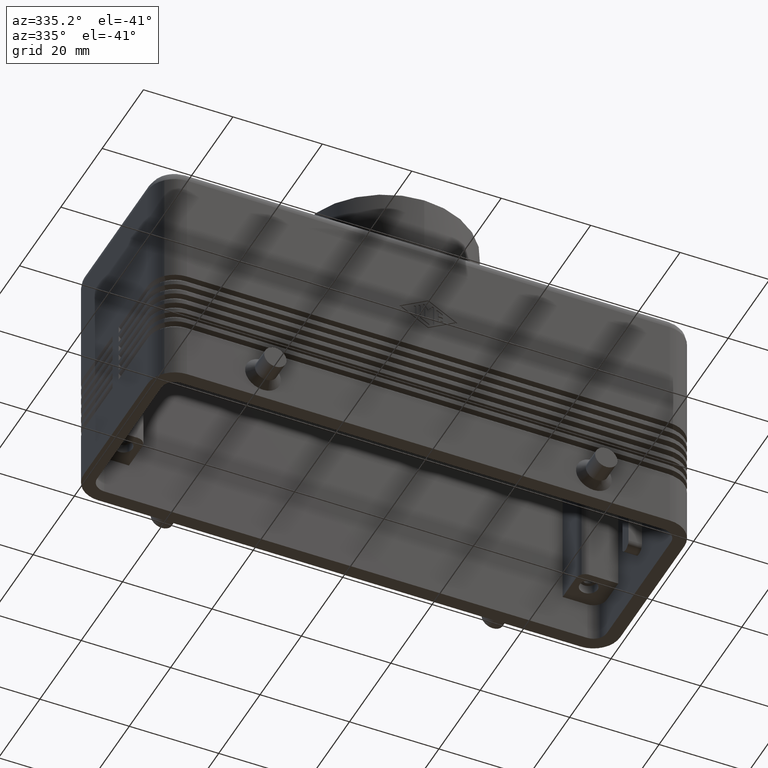
[diagram: clean part render]
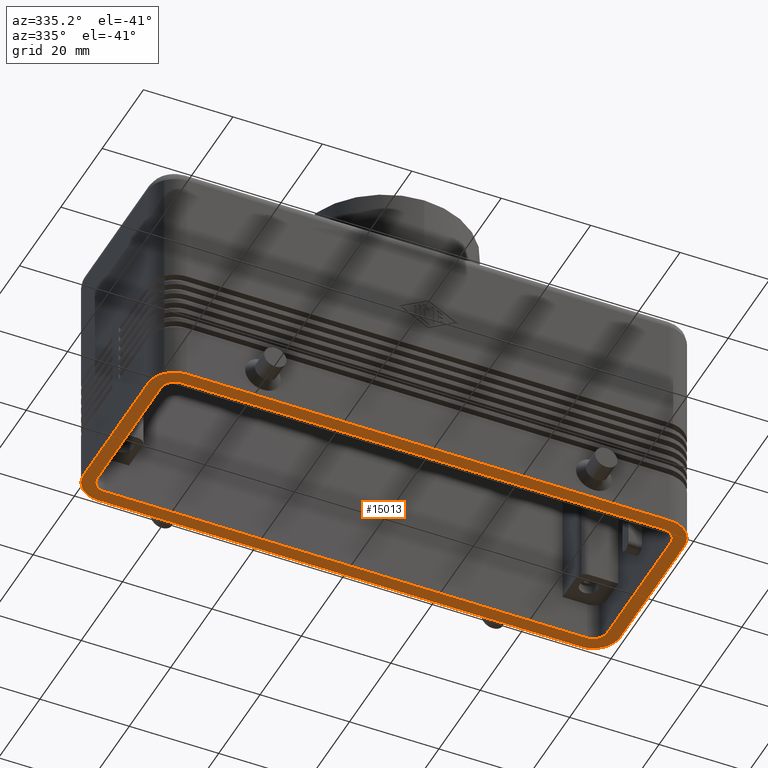
[diagram: same view with one face highlighted and labeled with its STEP entity id]
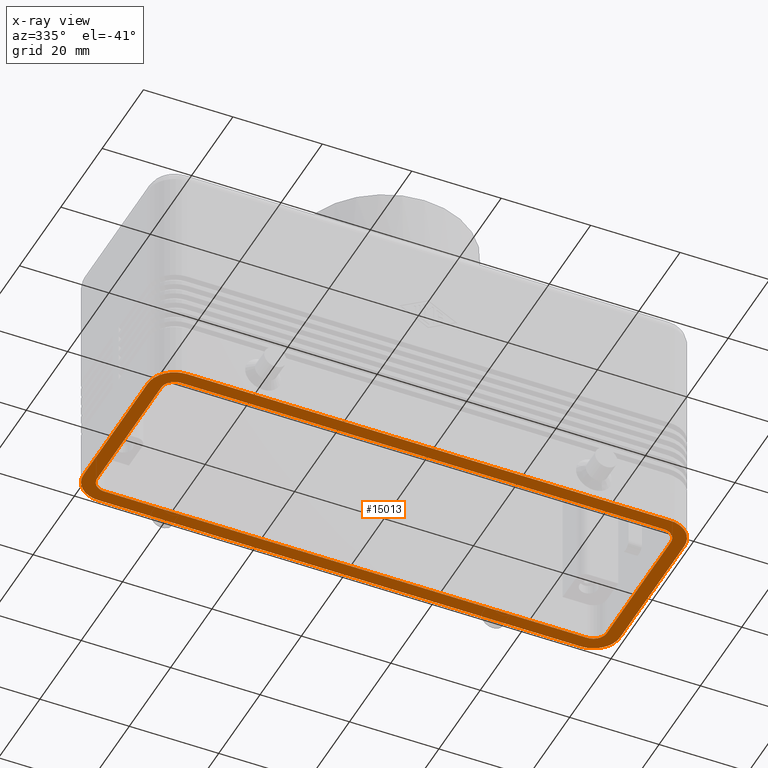
[diagram: x-ray of the same camera — body ghosted, the highlighted face saturated]
A machine part, auxiliary view. The second image highlights one B-rep face of the part: STEP entity #15013.
The next image is the same camera in x-ray: the body ghosted, the highlighted face saturated — about 0% of this face is hidden behind the body in this view.
In plain terms, the highlighted planar face has unit normal (0, 0, -1).
Its self-contained STEP definition (entity closure, byte-faithful):
#306=CARTESIAN_POINT('',(-58.242640687119284,-19.742640687119277,0.0));
#307=VERTEX_POINT('',#306);
#316=CARTESIAN_POINT('',(-53.999999999999986,-21.500000000000000,0.0));
#317=VERTEX_POINT('',#316);
#318=CARTESIAN_POINT('',(-53.999999999999993,-15.499999999999998,0.0));
#319=DIRECTION('',(0.0,0.0,1.000000000000000));
#320=DIRECTION('',(-0.707106781186548,-0.707106781186547,0.0));
#321=AXIS2_PLACEMENT_3D('',#318,#319,#320);
#322=CIRCLE('',#321,6.000000000000001);
#323=EDGE_CURVE('',#307,#317,#322,.T.);
#350=CARTESIAN_POINT('',(58.242640687119284,-19.742640687119284,1.776357E-014));
#351=VERTEX_POINT('',#350);
#367=CARTESIAN_POINT('',(54.0,-21.500000000000000,0.0));
#368=VERTEX_POINT('',#367);
#375=CARTESIAN_POINT('',(54.0,-15.499999999999998,1.776357E-014));
#376=DIRECTION('',(0.0,0.0,1.0));
#377=DIRECTION('',(0.707106781186547,-0.707106781186548,0.0));
#378=AXIS2_PLACEMENT_3D('',#375,#376,#377);
#379=CIRCLE('',#378,6.0);
#380=EDGE_CURVE('',#368,#351,#379,.T.);
#1718=CARTESIAN_POINT('',(58.242640687119284,19.742640687119284,1.776357E-014));
#1719=VERTEX_POINT('',#1718);
#1728=CARTESIAN_POINT('',(54.0,21.500000000000000,0.0));
#1729=VERTEX_POINT('',#1728);
#1730=CARTESIAN_POINT('',(54.0,15.499999999999998,1.776357E-014));
#1731=DIRECTION('',(0.0,0.0,1.0));
#1732=DIRECTION('',(0.707106781186547,0.707106781186548,0.0));
#1733=AXIS2_PLACEMENT_3D('',#1730,#1731,#1732);
#1734=CIRCLE('',#1733,6.0);
#1735=EDGE_CURVE('',#1719,#1729,#1734,.T.);
#1762=CARTESIAN_POINT('',(-58.242640687119284,19.742640687119277,0.0));
#1763=VERTEX_POINT('',#1762);
#1779=CARTESIAN_POINT('',(-53.999999999999986,21.500000000000000,0.0));
#1780=VERTEX_POINT('',#1779);
#1787=CARTESIAN_POINT('',(-53.999999999999993,15.499999999999998,0.0));
#1788=DIRECTION('',(0.0,0.0,1.000000000000000));
#1789=DIRECTION('',(-0.707106781186548,0.707106781186547,0.0));
#1790=AXIS2_PLACEMENT_3D('',#1787,#1788,#1789);
#1791=CIRCLE('',#1790,6.000000000000001);
#1792=EDGE_CURVE('',#1780,#1763,#1791,.T.);
#4977=CARTESIAN_POINT('',(57.0,15.499999999999998,0.0));
#4978=VERTEX_POINT('',#4977);
#4985=CARTESIAN_POINT('',(57.0,-15.499999999999998,0.0));
#4986=VERTEX_POINT('',#4985);
#4987=CARTESIAN_POINT('',(57.0,-15.499999999999998,0.0));
#4988=DIRECTION('',(0.0,1.0,0.0));
#4989=VECTOR('',#4988,30.999999999999996);
#4990=LINE('',#4987,#4989);
#4991=EDGE_CURVE('',#4986,#4978,#4990,.T.);
#6459=CARTESIAN_POINT('',(60.0,-15.499999999999998,0.0));
#6460=VERTEX_POINT('',#6459);
#6467=CARTESIAN_POINT('',(60.0,15.499999999999998,0.0));
#6468=VERTEX_POINT('',#6467);
#6469=CARTESIAN_POINT('',(60.0,15.499999999999998,0.0));
#6470=DIRECTION('',(0.0,-1.0,0.0));
#6471=VECTOR('',#6470,30.999999999999996);
#6472=LINE('',#6469,#6471);
#6473=EDGE_CURVE('',#6468,#6460,#6472,.T.);
#7641=CARTESIAN_POINT('',(54.0,18.500000000000000,0.0));
#7642=VERTEX_POINT('',#7641);
#7649=CARTESIAN_POINT('',(54.0,15.499999999999998,0.0));
#7650=DIRECTION('',(0.0,0.0,1.0));
#7651=DIRECTION('',(1.0,0.0,0.0));
#7652=AXIS2_PLACEMENT_3D('',#7649,#7650,#7651);
#7653=CIRCLE('',#7652,3.000000000000000);
#7654=EDGE_CURVE('',#4978,#7642,#7653,.T.);
#7667=CARTESIAN_POINT('',(54.0,-18.500000000000000,0.0));
#7668=VERTEX_POINT('',#7667);
#7669=CARTESIAN_POINT('',(54.0,-15.499999999999998,0.0));
#7670=DIRECTION('',(0.0,0.0,1.0));
#7671=DIRECTION('',(0.0,-1.0,0.0));
#7672=AXIS2_PLACEMENT_3D('',#7669,#7670,#7671);
#7673=CIRCLE('',#7672,3.000000000000000);
#7674=EDGE_CURVE('',#7668,#4986,#7673,.T.);
#7690=CARTESIAN_POINT('',(-54.0,-18.500000000000000,0.0));
#7691=VERTEX_POINT('',#7690);
#7692=CARTESIAN_POINT('',(-54.0,-18.500000000000000,0.0));
#7693=DIRECTION('',(1.0,0.0,0.0));
#7694=VECTOR('',#7693,108.0);
#7695=LINE('',#7692,#7694);
#7696=EDGE_CURVE('',#7691,#7668,#7695,.T.);
#7735=CARTESIAN_POINT('',(-57.0,-15.499999999999998,0.0));
#7736=VERTEX_POINT('',#7735);
#7737=CARTESIAN_POINT('',(-54.0,-15.499999999999998,0.0));
#7738=DIRECTION('',(0.0,0.0,1.0));
#7739=DIRECTION('',(-1.0,0.0,0.0));
#7740=AXIS2_PLACEMENT_3D('',#7737,#7738,#7739);
#7741=CIRCLE('',#7740,3.000000000000000);
#7742=EDGE_CURVE('',#7736,#7691,#7741,.T.);
#7768=CARTESIAN_POINT('',(-57.0,15.499999999999998,0.0));
#7769=VERTEX_POINT('',#7768);
#7770=CARTESIAN_POINT('',(-57.0,15.499999999999998,0.0));
#7771=DIRECTION('',(0.0,-1.0,0.0));
#7772=VECTOR('',#7771,30.999999999999996);
#7773=LINE('',#7770,#7772);
#7774=EDGE_CURVE('',#7769,#7736,#7773,.T.);
#7797=CARTESIAN_POINT('',(-54.0,18.500000000000000,0.0));
#7798=VERTEX_POINT('',#7797);
#7799=CARTESIAN_POINT('',(-54.0,15.499999999999998,0.0));
#7800=DIRECTION('',(0.0,0.0,1.0));
#7801=DIRECTION('',(0.0,1.0,0.0));
#7802=AXIS2_PLACEMENT_3D('',#7799,#7800,#7801);
#7803=CIRCLE('',#7802,3.000000000000000);
#7804=EDGE_CURVE('',#7798,#7769,#7803,.T.);
#7822=CARTESIAN_POINT('',(54.0,18.500000000000000,0.0));
#7823=DIRECTION('',(-1.0,0.0,0.0));
#7824=VECTOR('',#7823,108.0);
#7825=LINE('',#7822,#7824);
#7826=EDGE_CURVE('',#7642,#7798,#7825,.T.);
#9169=CARTESIAN_POINT('',(-60.0,15.499999999999998,0.0));
#9170=VERTEX_POINT('',#9169);
#9177=CARTESIAN_POINT('',(-60.0,-15.499999999999998,0.0));
#9178=VERTEX_POINT('',#9177);
#9179=CARTESIAN_POINT('',(-60.0,-15.499999999999998,0.0));
#9180=DIRECTION('',(0.0,1.0,0.0));
#9181=VECTOR('',#9180,30.999999999999996);
#9182=LINE('',#9179,#9181);
#9183=EDGE_CURVE('',#9178,#9170,#9182,.T.);
#10647=CARTESIAN_POINT('',(-53.999999999999993,15.499999999999998,0.0));
#10648=DIRECTION('',(0.0,0.0,1.000000000000000));
#10649=DIRECTION('',(-0.707106781186548,0.707106781186547,0.0));
#10650=AXIS2_PLACEMENT_3D('',#10647,#10648,#10649);
#10651=CIRCLE('',#10650,6.000000000000001);
#10652=EDGE_CURVE('',#1763,#9170,#10651,.T.);
#10666=CARTESIAN_POINT('',(-53.999999999999986,21.500000000000000,0.0));
#10667=DIRECTION('',(1.0,0.0,0.0));
#10668=VECTOR('',#10667,107.999999999999990);
#10669=LINE('',#10666,#10668);
#10670=EDGE_CURVE('',#1780,#1729,#10669,.T.);
#10692=CARTESIAN_POINT('',(54.0,15.499999999999998,1.776357E-014));
#10693=DIRECTION('',(0.0,0.0,1.0));
#10694=DIRECTION('',(0.707106781186547,0.707106781186548,0.0));
#10695=AXIS2_PLACEMENT_3D('',#10692,#10693,#10694);
#10696=CIRCLE('',#10695,6.0);
#10697=EDGE_CURVE('',#6468,#1719,#10696,.T.);
#13157=CARTESIAN_POINT('',(54.0,-15.499999999999998,1.776357E-014));
#13158=DIRECTION('',(0.0,0.0,1.0));
#13159=DIRECTION('',(0.707106781186547,-0.707106781186548,0.0));
#13160=AXIS2_PLACEMENT_3D('',#13157,#13158,#13159);
#13161=CIRCLE('',#13160,6.0);
#13162=EDGE_CURVE('',#351,#6460,#13161,.T.);
#13176=CARTESIAN_POINT('',(54.0,-21.500000000000000,0.0));
#13177=DIRECTION('',(-1.0,0.0,0.0));
#13178=VECTOR('',#13177,107.999999999999990);
#13179=LINE('',#13176,#13178);
#13180=EDGE_CURVE('',#368,#317,#13179,.T.);
#13202=CARTESIAN_POINT('',(-53.999999999999993,-15.499999999999998,0.0));
#13203=DIRECTION('',(0.0,0.0,1.000000000000000));
#13204=DIRECTION('',(-0.707106781186548,-0.707106781186547,0.0));
#13205=AXIS2_PLACEMENT_3D('',#13202,#13203,#13204);
#13206=CIRCLE('',#13205,6.000000000000001);
#13207=EDGE_CURVE('',#9178,#307,#13206,.T.);
#14984=CARTESIAN_POINT('',(-60.0,0.0,0.0));
#14985=DIRECTION('',(0.0,0.0,-1.0));
#14986=DIRECTION('',(-1.0,0.0,0.0));
#14987=AXIS2_PLACEMENT_3D('',#14984,#14985,#14986);
#14988=PLANE('',#14987);
#14989=ORIENTED_EDGE('',*,*,#13207,.F.);
#14990=ORIENTED_EDGE('',*,*,#9183,.T.);
#14991=ORIENTED_EDGE('',*,*,#10652,.F.);
#14992=ORIENTED_EDGE('',*,*,#1792,.F.);
#14993=ORIENTED_EDGE('',*,*,#10670,.T.);
#14994=ORIENTED_EDGE('',*,*,#1735,.F.);
#14995=ORIENTED_EDGE('',*,*,#10697,.F.);
#14996=ORIENTED_EDGE('',*,*,#6473,.T.);
#14997=ORIENTED_EDGE('',*,*,#13162,.F.);
#14998=ORIENTED_EDGE('',*,*,#380,.F.);
#14999=ORIENTED_EDGE('',*,*,#13180,.T.);
#15000=ORIENTED_EDGE('',*,*,#323,.F.);
#15001=EDGE_LOOP('',(#14989,#14990,#14991,#14992,#14993,#14994,#14995,#14996,#14997,#14998,#14999,#15000));
#15002=FACE_OUTER_BOUND('',#15001,.T.);
#15003=ORIENTED_EDGE('',*,*,#7654,.T.);
#15004=ORIENTED_EDGE('',*,*,#7826,.T.);
#15005=ORIENTED_EDGE('',*,*,#7804,.T.);
#15006=ORIENTED_EDGE('',*,*,#7774,.T.);
#15007=ORIENTED_EDGE('',*,*,#7742,.T.);
#15008=ORIENTED_EDGE('',*,*,#7696,.T.);
#15009=ORIENTED_EDGE('',*,*,#7674,.T.);
#15010=ORIENTED_EDGE('',*,*,#4991,.T.);
#15011=EDGE_LOOP('',(#15003,#15004,#15005,#15006,#15007,#15008,#15009,#15010));
#15012=FACE_BOUND('',#15011,.T.);
#15013=ADVANCED_FACE('',(#15002,#15012),#14988,.T.);